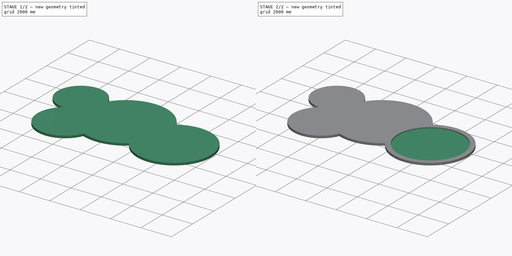
[diagram: build sequence overview — one tinted view per stage of 2, left to right]
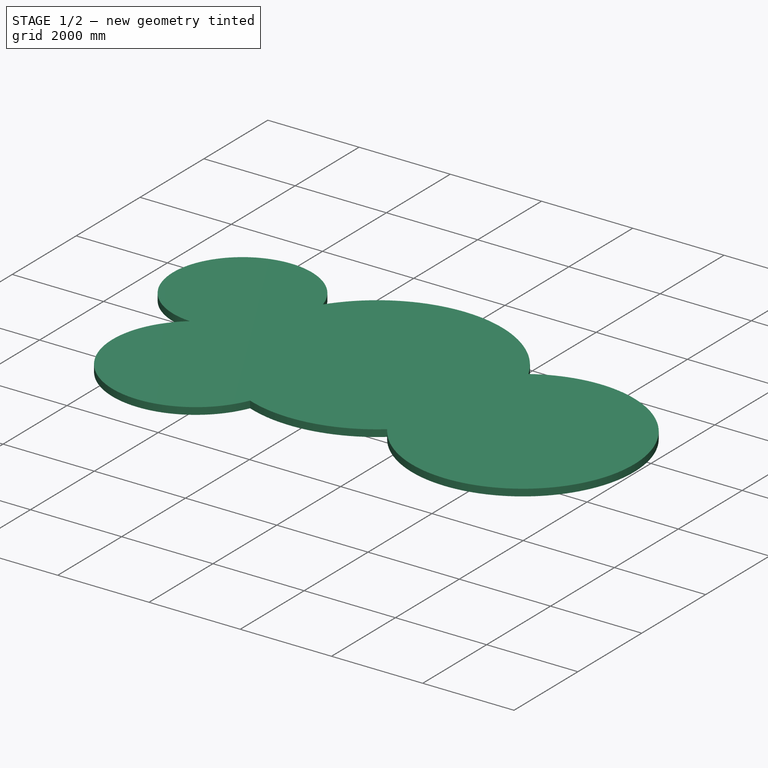
[diagram: stage 1 of 2 — iso view after this stage's code; geometry added in this stage tinted green]
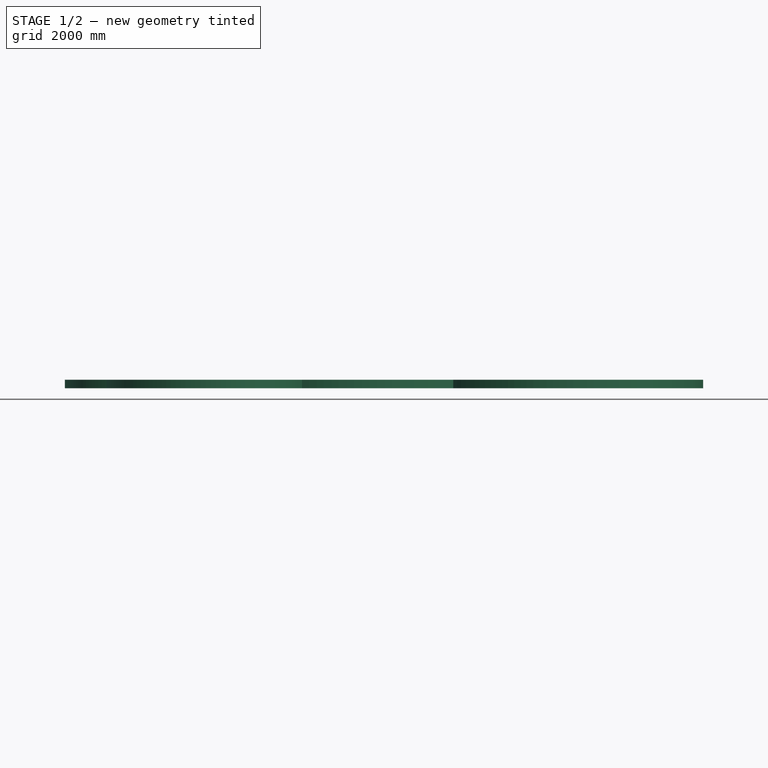
[diagram: stage 1 of 2 — front view after this stage's code; geometry added in this stage tinted green]
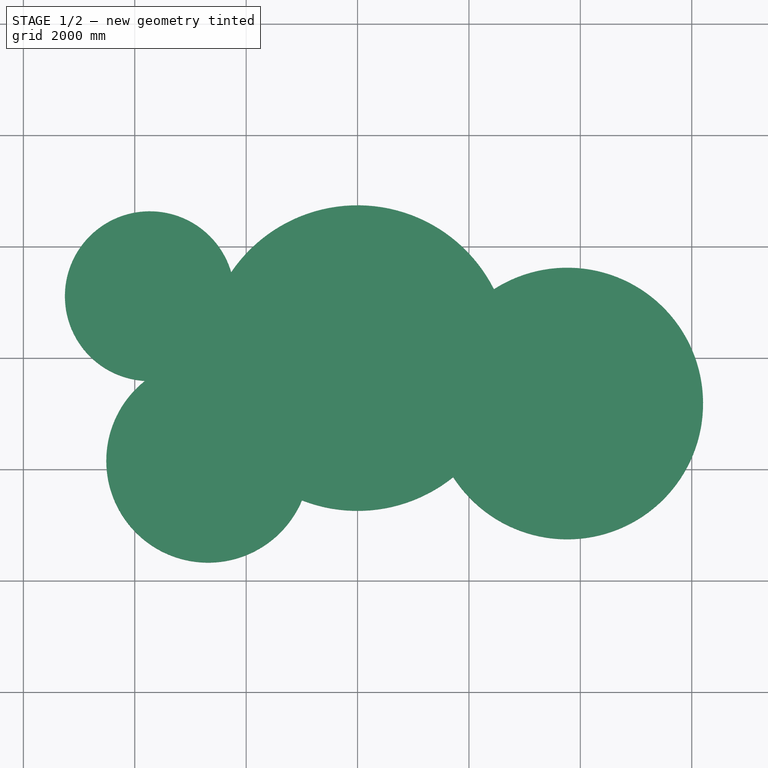
[diagram: stage 1 of 2 — top view after this stage's code; geometry added in this stage tinted green]
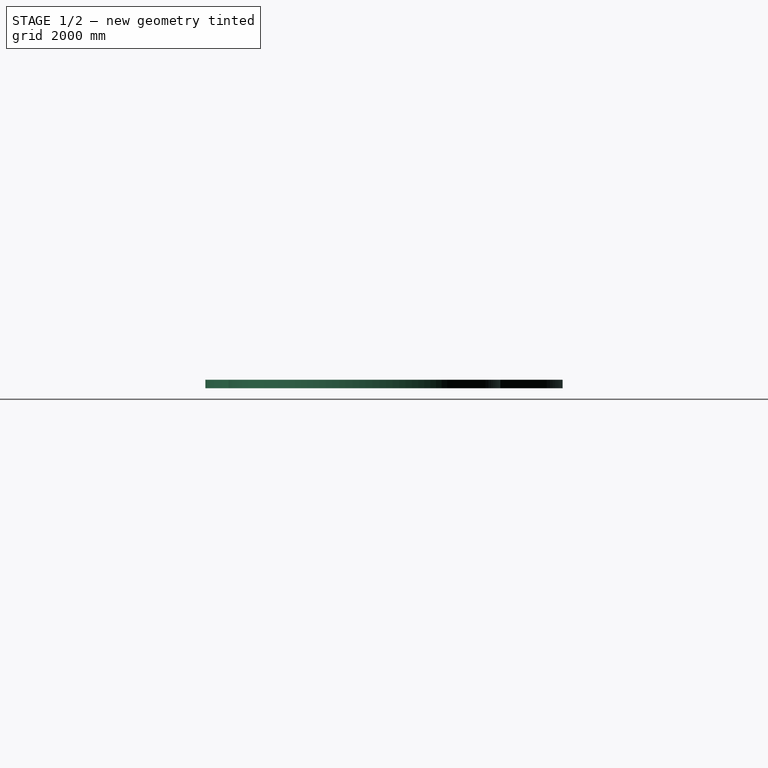
[diagram: stage 1 of 2 — right view after this stage's code; geometry added in this stage tinted green]
FCSTD DOCUMENT  (FreeCAD 0.20R29177 (Git))
Label: pool
License: All rights reserved
LicenseURL: http://en.wikipedia.org/wiki/All_rights_reserved
objects: Sketcher::SketchObject×2, PartDesign::Pad×1, PartDesign::Pocket×1, PartDesign::Body×1
note: 7 computed .brp shape members not serialized (recipe doc carries the construction recipe); baked Part::Feature solids carry a one-line shape summary decoded from their .brp

FEATURE [Sketcher::SketchObject] Sketch
  FullyConstrained = true
  MapMode = 5
  Support = -> [XY_Plane]
  expr: Constraints[1] = 216 * 25.4
  expr: Constraints[2] = 192"
  sketch-geometry (9):
    g0: Circle CenterX=0 CenterY=0 CenterZ=0 NormalX=0 NormalY=0 NormalZ=1 AngleXU=0 Radius=2743.2
    g1: Circle CenterX=3765.55 CenterY=-815.975 CenterZ=0 NormalX=0 NormalY=0 NormalZ=1 AngleXU=0 Radius=2438.4
    g2: Circle CenterX=-2682.88 CenterY=-1844.67 CenterZ=0 NormalX=0 NormalY=0 NormalZ=1 AngleXU=0 Radius=1828.8
    g3: Circle CenterX=-3730.62 CenterY=1111.25 CenterZ=0 NormalX=0 NormalY=0 NormalZ=1 AngleXU=0 Radius=1524
    g4: ArcOfCircle CenterX=-3730.62 CenterY=1111.25 CenterZ=0 NormalX=0 NormalY=0 NormalZ=1 AngleXU=0 Radius=1524 StartAngle=0.286562 EndAngle=4.65546
    g5: ArcOfCircle CenterX=0 CenterY=0 CenterZ=0 NormalX=0 NormalY=0 NormalZ=1 AngleXU=0 Radius=2743.2 StartAngle=0.467538 EndAngle=2.54464
    g6: ArcOfCircle CenterX=3765.55 CenterY=-815.975 CenterZ=0 NormalX=0 NormalY=0 NormalZ=1 AngleXU=0 Radius=2438.4 StartAngle=3.71515 EndAngle=8.42442
    g7: ArcOfCircle CenterX=-2682.88 CenterY=-1844.67 CenterZ=0 NormalX=0 NormalY=0 NormalZ=1 AngleXU=0 Radius=1828.8 StartAngle=2.23997 EndAngle=5.8841
    g8: ArcOfCircle CenterX=0 CenterY=0 CenterZ=0 NormalX=0 NormalY=0 NormalZ=1 AngleXU=0 Radius=2743.2 StartAngle=4.34012 EndAngle=5.38886
  constraints (26):
    c: Coincident(g0,g-1)
    c: Diameter(g0) = 5486.4
    c: Diameter(g1) = 4876.8
    c: DistanceY(g1,g0) = 815.975
    c: DistanceX(g0,g1) = 3765.55
    c: Diameter(g2) = 3657.6
    c: Diameter(g3) = 3048
    c: DistanceX(g3,g0) = 3730.62
    c: DistanceX(g2,g0) = 2682.88
    c: DistanceY(g2,g0) = 1844.67
    c: DistanceY(g0,g3) = 1111.25
    c: Coincident(g3,g4)
    c: PointOnObject(g4,g0)
    c: PointOnObject(g4,g3)
    c: PointOnObject(g4,g2)
    c: Coincident(g5,g0)
    c: Coincident(g5,g4)
    c: PointOnObject(g5,g1)
    c: Coincident(g6,g1)
    c: Coincident(g6,g5)
    c: PointOnObject(g6,g0)
    c: Coincident(g7,g2)
    c: Coincident(g7,g4)
    c: Coincident(g8,g5)
    c: Coincident(g8,g6)
    c: Coincident(g8,g7)
FEATURE [PartDesign::Pad] Pad
  Direction = (0,0,1)
  Length = 152.4
  Length2 = 9.525
  Profile = -> Sketch
  ReferenceAxis = -> Sketch [N_Axis]
  Type = 0
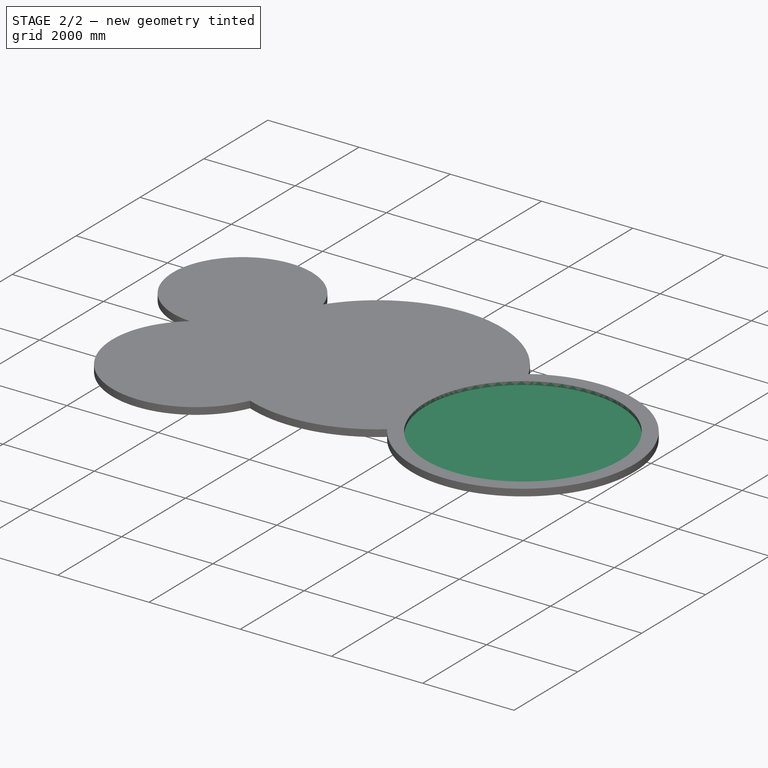
[diagram: stage 2 of 2 — iso view after this stage's code; geometry added in this stage tinted green]
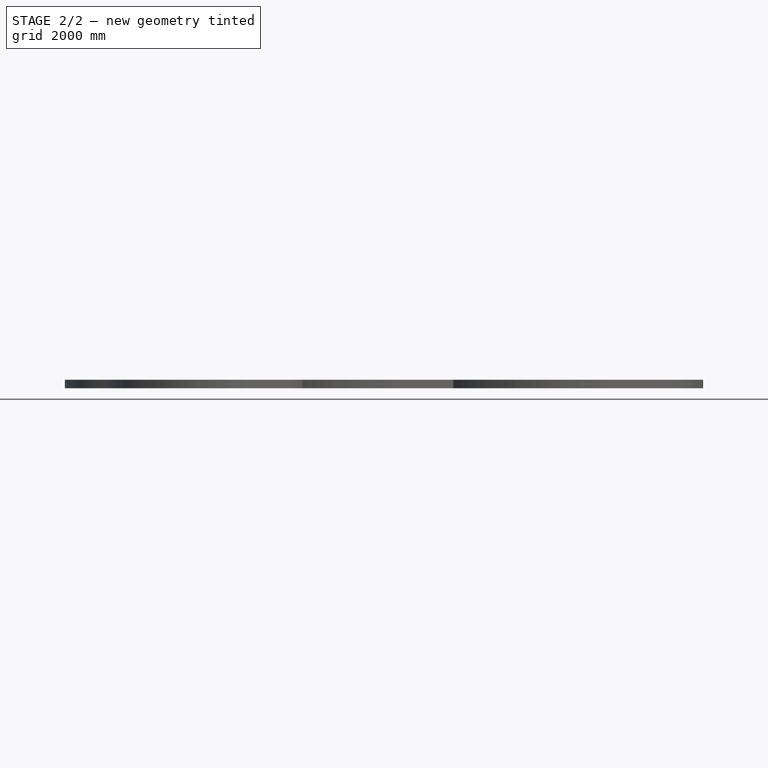
[diagram: stage 2 of 2 — front view after this stage's code; geometry added in this stage tinted green]
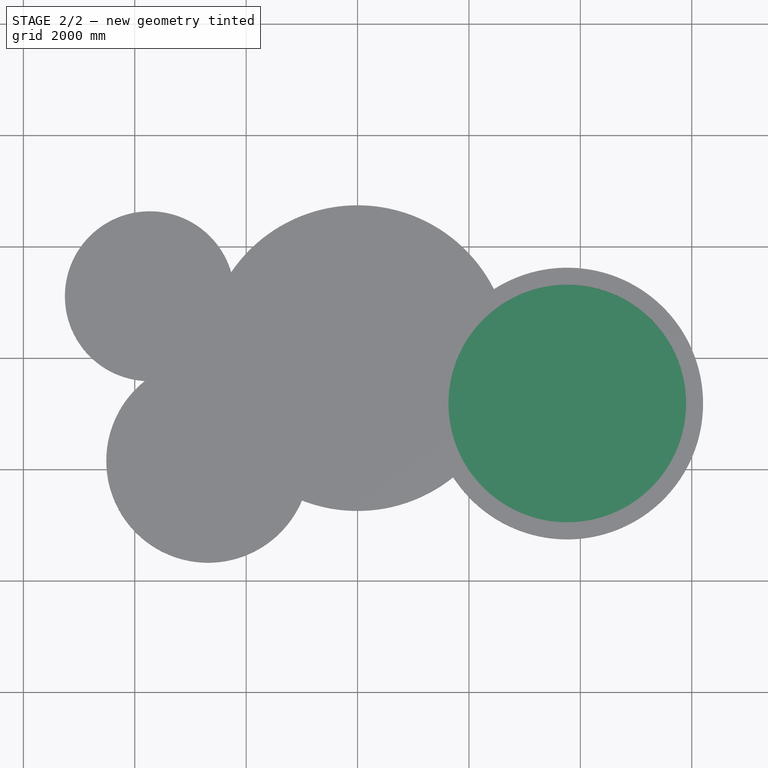
[diagram: stage 2 of 2 — top view after this stage's code; geometry added in this stage tinted green]
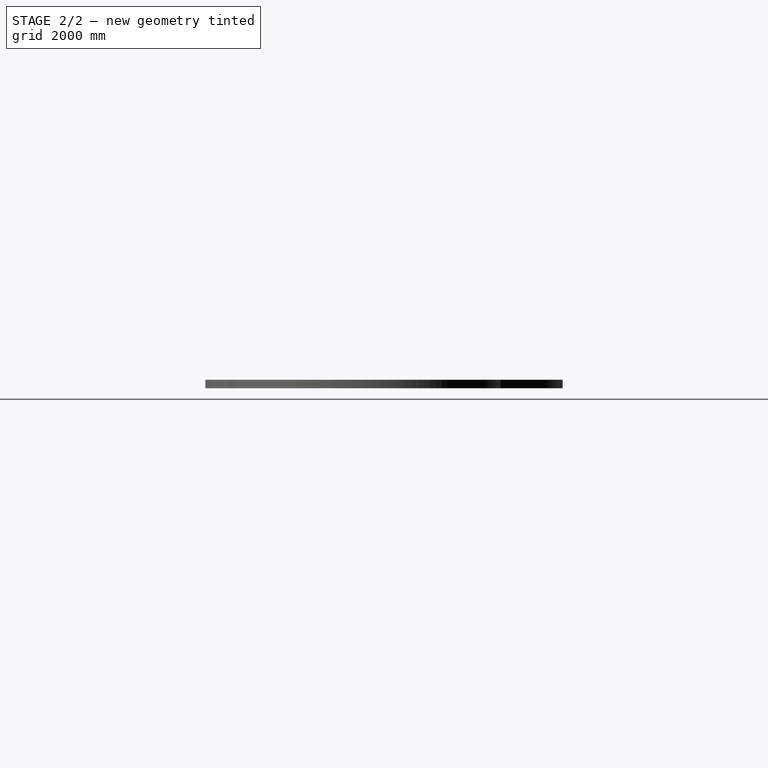
[diagram: stage 2 of 2 — right view after this stage's code; geometry added in this stage tinted green]
FEATURE [Sketcher::SketchObject] Sketch001
  ExternalGeometry = -> [Pad]
  FullyConstrained = true
  MapMode = 5
  Placement = pos=(0,0,152.4) rot=(0,0,1;0rad)
  Support = -> [Pad]
  sketch-geometry (1):
    g0: Circle CenterX=3765.55 CenterY=-815.975 CenterZ=0 NormalX=0 NormalY=0 NormalZ=1 AngleXU=0 Radius=2133.6
  constraints (3):
    c: Coincident(g0,g-5)
    c: Radius(g-5) = 2438.4
    c: Radius(g0) = 2133.6
FEATURE [PartDesign::Pocket] Pocket
  BaseFeature = -> Pad
  Direction = (0,0,-1)
  Length = 76.2
  Length2 = 6.35
  Profile = -> Sketch001
  ReferenceAxis = -> Sketch001 [N_Axis]
  Type = 0
FEATURE [PartDesign::Body] Body
  Group = -> [Sketch,Pad,Sketch001,Pocket]
  Origin = -> Origin
  Tip = -> Pocket
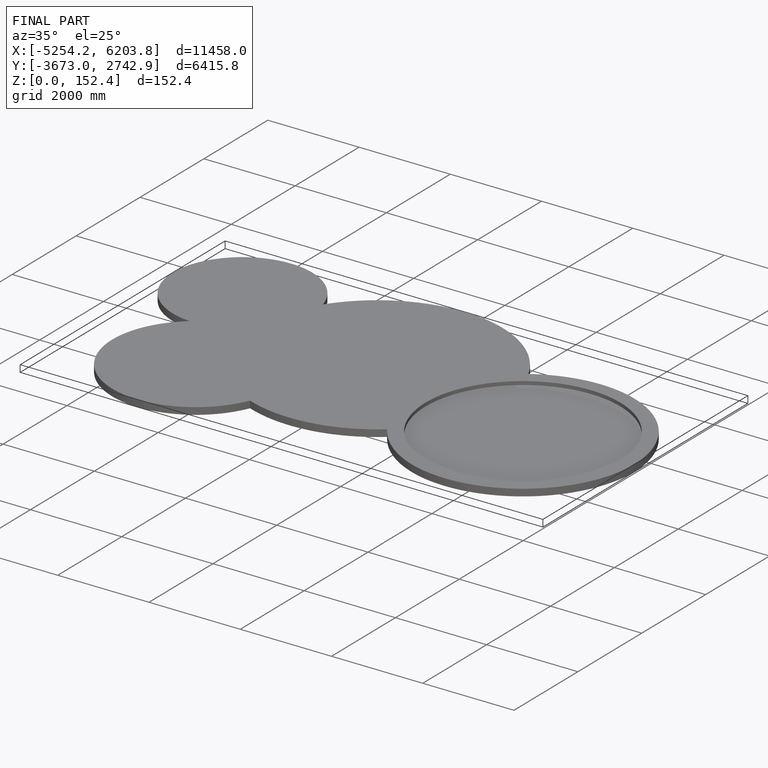
[diagram: finished part — iso view with bounding-box wireframe]
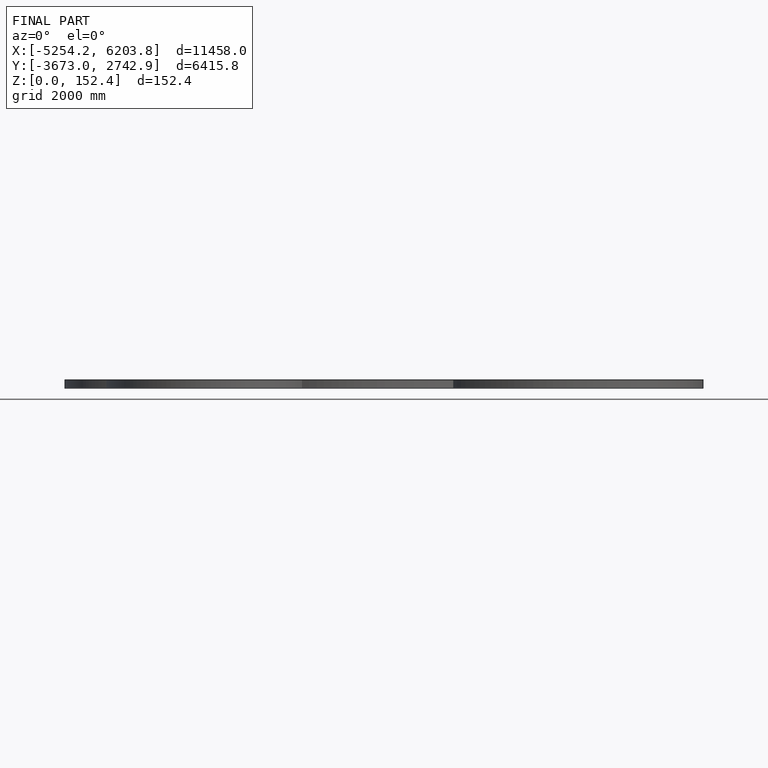
[diagram: finished part — front view with bounding-box wireframe]
